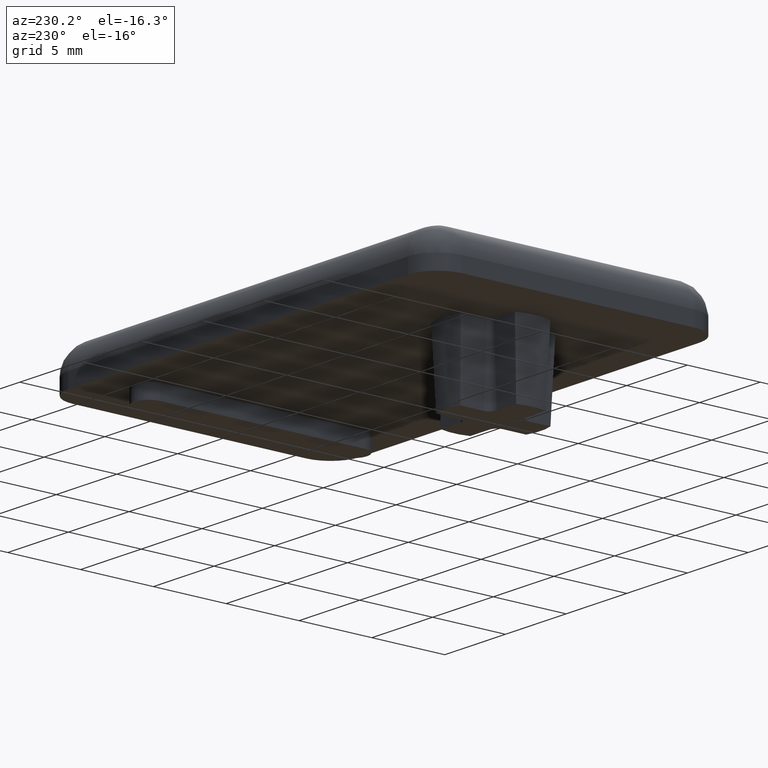
[diagram: clean part render]
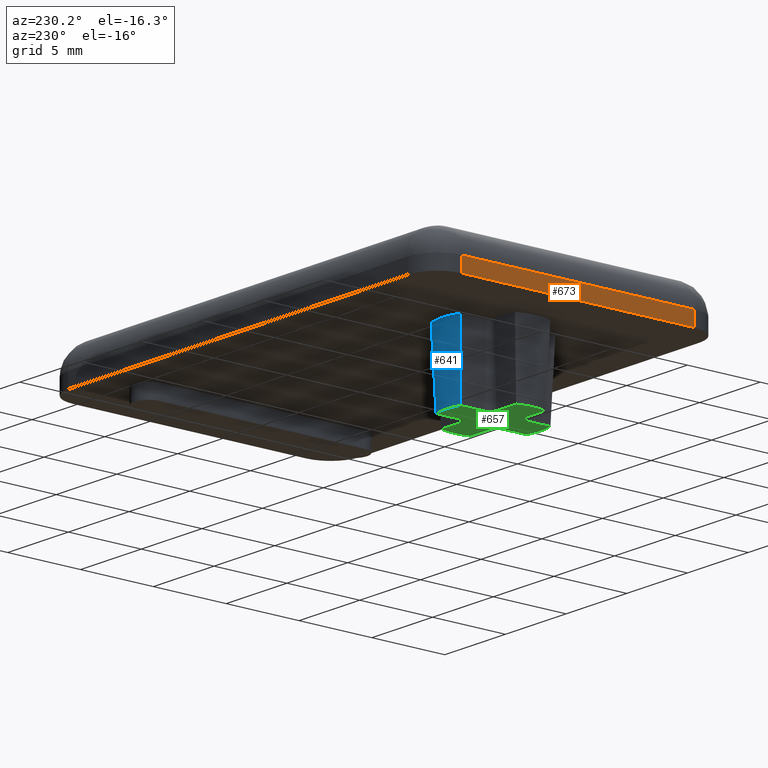
[diagram: same view with three faces highlighted in distinct colors, each labeled with its STEP entity id]
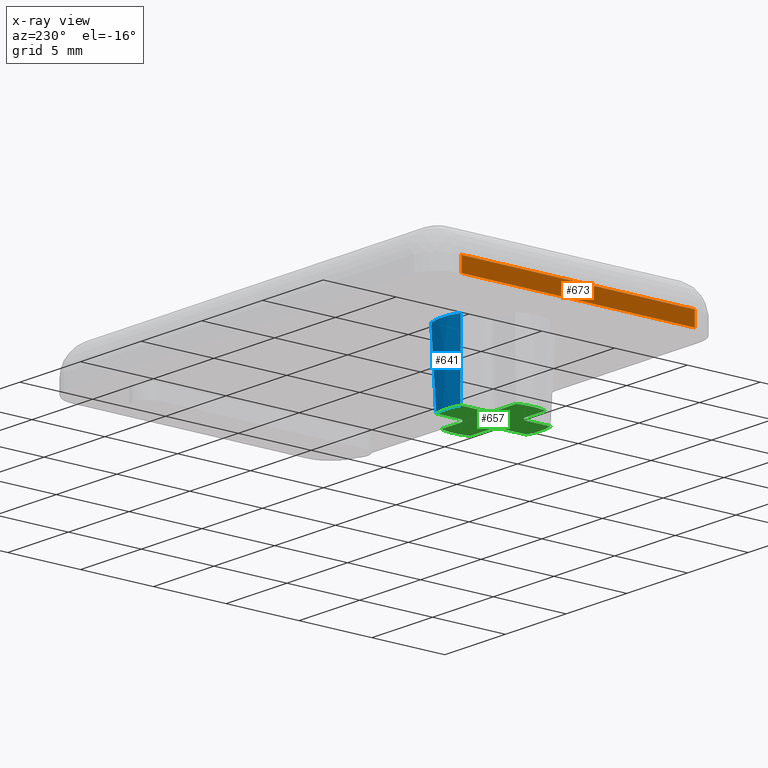
[diagram: x-ray of the same camera — body ghosted, the three highlighted faces saturated]
A machine part, auxiliary view with three faces highlighted in distinct colors.
The next image is the same camera in x-ray (body ghosted, the three faces saturated) — at least one of them is partly hidden behind the body in this view.
Their STEP definitions:

[orange] entity #673 — the highlighted planar face has unit normal (-1, 0, 0).
#53=PLANE('',#751);
#93=FACE_OUTER_BOUND('',#135,.T.);
#135=EDGE_LOOP('',(#617,#618,#619,#620));
#175=LINE('',#1129,#227);
#181=LINE('',#1156,#233);
#183=LINE('',#1160,#235);
#187=LINE('',#1168,#239);
#227=VECTOR('',#903,1.);
#233=VECTOR('',#935,1.);
#235=VECTOR('',#941,16.);
#239=VECTOR('',#953,16.);
#326=VERTEX_POINT('',#1122);
#328=VERTEX_POINT('',#1127);
#333=VERTEX_POINT('',#1146);
#335=VERTEX_POINT('',#1152);
#411=EDGE_CURVE('',#328,#326,#175,.T.);
#425=EDGE_CURVE('',#333,#335,#181,.T.);
#427=EDGE_CURVE('',#326,#333,#183,.T.);
#431=EDGE_CURVE('',#335,#328,#187,.T.);
#617=ORIENTED_EDGE('',*,*,#411,.F.);
#618=ORIENTED_EDGE('',*,*,#431,.F.);
#619=ORIENTED_EDGE('',*,*,#425,.F.);
#620=ORIENTED_EDGE('',*,*,#427,.F.);
#673=ADVANCED_FACE('',(#93),#53,.T.);
#751=AXIS2_PLACEMENT_3D('',#1170,#955,#956);
#903=DIRECTION('',(0.,0.,1.));
#935=DIRECTION('',(0.,0.,-1.));
#941=DIRECTION('',(0.,-1.,0.));
#953=DIRECTION('',(0.,1.,0.));
#955=DIRECTION('center_axis',(-1.,0.,0.));
#956=DIRECTION('ref_axis',(0.,-1.,0.));
#1122=CARTESIAN_POINT('',(-16.,8.00000000000003,1.));
#1127=CARTESIAN_POINT('',(-16.,8.00000000000003,0.));
#1129=CARTESIAN_POINT('',(-16.,8.00000000000003,0.));
#1146=CARTESIAN_POINT('',(-16.,-7.99999999999996,1.));
#1152=CARTESIAN_POINT('',(-16.,-7.99999999999996,0.));
#1156=CARTESIAN_POINT('',(-16.,-7.99999999999996,0.));
#1160=CARTESIAN_POINT('',(-16.,5.00000000000003,1.));
#1168=CARTESIAN_POINT('',(-16.,-9.99999999999996,0.));
#1170=CARTESIAN_POINT('Origin',(-16.,10.,0.));

[blue] entity #641 — the highlighted conical surface has half-angle 2.5 deg.
#21=(
BOUNDED_CURVE()
B_SPLINE_CURVE(2,(#999,#1000,#1001),.UNSPECIFIED.,.F.,.F.)
B_SPLINE_CURVE_WITH_KNOTS((3,3),(82.649049565892,83.7909310166994),
 .UNSPECIFIED.)
CURVE()
GEOMETRIC_REPRESENTATION_ITEM()
RATIONAL_B_SPLINE_CURVE((1.,1.,1.))
REPRESENTATION_ITEM('')
);
#22=(
BOUNDED_CURVE()
B_SPLINE_CURVE(2,(#1004,#1005,#1006),.UNSPECIFIED.,.F.,.F.)
B_SPLINE_CURVE_WITH_KNOTS((3,3),(82.649049565206,83.7909310159598),
 .UNSPECIFIED.)
CURVE()
GEOMETRIC_REPRESENTATION_ITEM()
RATIONAL_B_SPLINE_CURVE((1.,1.,1.))
REPRESENTATION_ITEM('')
);
#29=CONICAL_SURFACE('',#687,3.25,2.5);
#61=FACE_OUTER_BOUND('',#101,.T.);
#101=EDGE_LOOP('',(#457,#458,#459,#460));
#245=CIRCLE('',#688,3.46830471454256);
#246=CIRCLE('',#689,3.25);
#289=VERTEX_POINT('',#995);
#290=VERTEX_POINT('',#996);
#291=VERTEX_POINT('',#998);
#292=VERTEX_POINT('',#1002);
#353=EDGE_CURVE('',#289,#290,#245,.F.);
#354=EDGE_CURVE('',#291,#289,#21,.F.);
#355=EDGE_CURVE('',#291,#292,#246,.T.);
#356=EDGE_CURVE('',#292,#290,#22,.F.);
#457=ORIENTED_EDGE('',*,*,#353,.F.);
#458=ORIENTED_EDGE('',*,*,#354,.F.);
#459=ORIENTED_EDGE('',*,*,#355,.T.);
#460=ORIENTED_EDGE('',*,*,#356,.T.);
#641=ADVANCED_FACE('',(#61),#29,.T.);
#687=AXIS2_PLACEMENT_3D('',#994,#787,#788);
#688=AXIS2_PLACEMENT_3D('',#997,#789,#790);
#689=AXIS2_PLACEMENT_3D('',#1003,#791,#792);
#787=DIRECTION('center_axis',(0.,0.,1.));
#788=DIRECTION('ref_axis',(1.,0.,0.));
#789=DIRECTION('center_axis',(0.,0.,-1.));
#790=DIRECTION('ref_axis',(1.,0.,0.));
#791=DIRECTION('center_axis',(0.,0.,1.));
#792=DIRECTION('ref_axis',(1.,0.,0.));
#994=CARTESIAN_POINT('Origin',(-9.,0.,-5.));
#995=CARTESIAN_POINT('',(-7.78169528545744,3.2472867467228,0.));
#996=CARTESIAN_POINT('',(-10.2183047145426,3.2472867467228,0.));
#997=CARTESIAN_POINT('Origin',(-9.,0.,0.));
#998=CARTESIAN_POINT('',(-8.,3.09232921921325,-5.));
#999=CARTESIAN_POINT('Ctrl Pts',(-7.78169528545745,3.24728674662566,0.));
#1000=CARTESIAN_POINT('Ctrl Pts',(-7.89351562443397,3.16980798286714,-2.56110682746429));
#1001=CARTESIAN_POINT('Ctrl Pts',(-8.00000000000291,3.09232921910863,-5.0000000000664));
#1002=CARTESIAN_POINT('',(-10.,3.09232921921325,-5.));
#1003=CARTESIAN_POINT('Origin',(-9.,0.,-5.));
#1004=CARTESIAN_POINT('Ctrl Pts',(-10.2183047145426,3.24728674677263,1.06581410364015E-13));
#1005=CARTESIAN_POINT('Ctrl Pts',(-10.1064843755663,3.16980798301812,-2.56110682746014));
#1006=CARTESIAN_POINT('Ctrl Pts',(-9.99999999999698,3.0923292192636,-5.00000000007017));

[green] entity #657 — the highlighted planar face has unit normal (0, 0, 1).
#49=PLANE('',#719);
#77=FACE_OUTER_BOUND('',#117,.T.);
#117=EDGE_LOOP('',(#521,#522,#523,#524,#525,#526,#527,#528,#529,#530,#531,
#532,#533,#534,#535,#536));
#151=LINE('',#1012,#203);
#154=LINE('',#1026,#206);
#157=LINE('',#1040,#209);
#160=LINE('',#1054,#212);
#163=LINE('',#1068,#215);
#166=LINE('',#1082,#218);
#169=LINE('',#1096,#221);
#172=LINE('',#1105,#224);
#203=VECTOR('',#797,1.59232921921325);
#206=VECTOR('',#808,1.59232921921325);
#209=VECTOR('',#819,1.59232921921325);
#212=VECTOR('',#830,1.59232921921325);
#215=VECTOR('',#841,1.59232921921325);
#218=VECTOR('',#852,1.59232921921324);
#221=VECTOR('',#863,1.59232921921324);
#224=VECTOR('',#874,1.59232921921325);
#246=CIRCLE('',#689,3.25);
#248=CIRCLE('',#693,0.5);
#250=CIRCLE('',#697,3.25);
#252=CIRCLE('',#701,0.5);
#254=CIRCLE('',#705,3.25);
#256=CIRCLE('',#709,0.5);
#258=CIRCLE('',#713,3.25);
#260=CIRCLE('',#717,0.5);
#291=VERTEX_POINT('',#998);
#292=VERTEX_POINT('',#1002);
#294=VERTEX_POINT('',#1010);
#296=VERTEX_POINT('',#1016);
#298=VERTEX_POINT('',#1022);
#300=VERTEX_POINT('',#1030);
#302=VERTEX_POINT('',#1038);
#304=VERTEX_POINT('',#1044);
#306=VERTEX_POINT('',#1050);
#308=VERTEX_POINT('',#1058);
#310=VERTEX_POINT('',#1066);
#312=VERTEX_POINT('',#1072);
#314=VERTEX_POINT('',#1078);
#316=VERTEX_POINT('',#1086);
#318=VERTEX_POINT('',#1094);
#320=VERTEX_POINT('',#1100);
#355=EDGE_CURVE('',#291,#292,#246,.T.);
#359=EDGE_CURVE('',#294,#291,#151,.T.);
#362=EDGE_CURVE('',#296,#294,#248,.T.);
#365=EDGE_CURVE('',#298,#296,#154,.T.);
#368=EDGE_CURVE('',#300,#298,#250,.T.);
#371=EDGE_CURVE('',#302,#300,#157,.T.);
#374=EDGE_CURVE('',#304,#302,#252,.T.);
#377=EDGE_CURVE('',#306,#304,#160,.T.);
#380=EDGE_CURVE('',#308,#306,#254,.T.);
#383=EDGE_CURVE('',#310,#308,#163,.T.);
#386=EDGE_CURVE('',#312,#310,#256,.T.);
#389=EDGE_CURVE('',#314,#312,#166,.T.);
#392=EDGE_CURVE('',#316,#314,#258,.T.);
#395=EDGE_CURVE('',#318,#316,#169,.T.);
#398=EDGE_CURVE('',#320,#318,#260,.T.);
#400=EDGE_CURVE('',#292,#320,#172,.T.);
#521=ORIENTED_EDGE('',*,*,#374,.F.);
#522=ORIENTED_EDGE('',*,*,#377,.F.);
#523=ORIENTED_EDGE('',*,*,#380,.F.);
#524=ORIENTED_EDGE('',*,*,#383,.F.);
#525=ORIENTED_EDGE('',*,*,#386,.F.);
#526=ORIENTED_EDGE('',*,*,#389,.F.);
#527=ORIENTED_EDGE('',*,*,#392,.F.);
#528=ORIENTED_EDGE('',*,*,#395,.F.);
#529=ORIENTED_EDGE('',*,*,#398,.F.);
#530=ORIENTED_EDGE('',*,*,#400,.F.);
#531=ORIENTED_EDGE('',*,*,#355,.F.);
#532=ORIENTED_EDGE('',*,*,#359,.F.);
#533=ORIENTED_EDGE('',*,*,#362,.F.);
#534=ORIENTED_EDGE('',*,*,#365,.F.);
#535=ORIENTED_EDGE('',*,*,#368,.F.);
#536=ORIENTED_EDGE('',*,*,#371,.F.);
#657=ADVANCED_FACE('',(#77),#49,.F.);
#689=AXIS2_PLACEMENT_3D('',#1003,#791,#792);
#693=AXIS2_PLACEMENT_3D('',#1018,#803,#804);
#697=AXIS2_PLACEMENT_3D('',#1034,#813,#814);
#701=AXIS2_PLACEMENT_3D('',#1046,#825,#826);
#705=AXIS2_PLACEMENT_3D('',#1062,#835,#836);
#709=AXIS2_PLACEMENT_3D('',#1074,#847,#848);
#713=AXIS2_PLACEMENT_3D('',#1090,#857,#858);
#717=AXIS2_PLACEMENT_3D('',#1102,#869,#870);
#719=AXIS2_PLACEMENT_3D('',#1106,#875,#876);
#791=DIRECTION('center_axis',(0.,0.,1.));
#792=DIRECTION('ref_axis',(1.,0.,0.));
#797=DIRECTION('',(0.,1.,0.));
#803=DIRECTION('center_axis',(0.,0.,-1.));
#804=DIRECTION('ref_axis',(1.,0.,0.));
#808=DIRECTION('',(-1.,0.,0.));
#813=DIRECTION('center_axis',(0.,0.,1.));
#814=DIRECTION('ref_axis',(1.,0.,0.));
#819=DIRECTION('',(1.,0.,0.));
#825=DIRECTION('center_axis',(0.,0.,-1.));
#826=DIRECTION('ref_axis',(0.,-1.,0.));
#830=DIRECTION('',(0.,1.,0.));
#835=DIRECTION('center_axis',(0.,0.,1.));
#836=DIRECTION('ref_axis',(1.,0.,0.));
#841=DIRECTION('',(0.,-1.,0.));
#847=DIRECTION('center_axis',(0.,0.,-1.));
#848=DIRECTION('ref_axis',(-1.,0.,0.));
#852=DIRECTION('',(1.,0.,0.));
#857=DIRECTION('center_axis',(0.,0.,1.));
#858=DIRECTION('ref_axis',(1.,0.,0.));
#863=DIRECTION('',(-1.,0.,0.));
#869=DIRECTION('center_axis',(0.,0.,-1.));
#870=DIRECTION('ref_axis',(0.,1.,0.));
#874=DIRECTION('',(0.,-1.,0.));
#875=DIRECTION('center_axis',(0.,0.,1.));
#876=DIRECTION('ref_axis',(1.,0.,0.));
#998=CARTESIAN_POINT('',(-8.,3.09232921921325,-5.));
#1002=CARTESIAN_POINT('',(-10.,3.09232921921325,-5.));
#1003=CARTESIAN_POINT('Origin',(-9.,0.,-5.));
#1010=CARTESIAN_POINT('',(-8.,1.5,-5.));
#1012=CARTESIAN_POINT('',(-8.,1.5,-5.));
#1016=CARTESIAN_POINT('',(-7.5,1.,-5.));
#1018=CARTESIAN_POINT('Origin',(-7.5,1.5,-5.));
#1022=CARTESIAN_POINT('',(-5.90767078078675,1.,-5.));
#1026=CARTESIAN_POINT('',(-5.90767078078675,1.,-5.));
#1030=CARTESIAN_POINT('',(-5.90767078078675,-1.,-5.));
#1034=CARTESIAN_POINT('Origin',(-9.,0.,-5.));
#1038=CARTESIAN_POINT('',(-7.5,-1.,-5.));
#1040=CARTESIAN_POINT('',(-7.5,-1.,-5.));
#1044=CARTESIAN_POINT('',(-8.,-1.5,-5.));
#1046=CARTESIAN_POINT('Origin',(-7.5,-1.5,-5.));
#1050=CARTESIAN_POINT('',(-8.,-3.09232921921325,-5.));
#1054=CARTESIAN_POINT('',(-8.,-3.09232921921325,-5.));
#1058=CARTESIAN_POINT('',(-10.,-3.09232921921325,-5.));
#1062=CARTESIAN_POINT('Origin',(-9.,0.,-5.));
#1066=CARTESIAN_POINT('',(-10.,-1.5,-5.));
#1068=CARTESIAN_POINT('',(-10.,-1.5,-5.));
#1072=CARTESIAN_POINT('',(-10.5,-1.,-5.));
#1074=CARTESIAN_POINT('Origin',(-10.5,-1.5,-5.));
#1078=CARTESIAN_POINT('',(-12.0923292192132,-1.,-5.));
#1082=CARTESIAN_POINT('',(-12.0923292192132,-1.,-5.));
#1086=CARTESIAN_POINT('',(-12.0923292192132,1.,-5.));
#1090=CARTESIAN_POINT('Origin',(-9.,0.,-5.));
#1094=CARTESIAN_POINT('',(-10.5,1.,-5.));
#1096=CARTESIAN_POINT('',(-10.5,1.,-5.));
#1100=CARTESIAN_POINT('',(-10.,1.5,-5.));
#1102=CARTESIAN_POINT('Origin',(-10.5,1.5,-5.));
#1105=CARTESIAN_POINT('',(-10.,3.09232921921325,-5.));
#1106=CARTESIAN_POINT('Origin',(-9.,-1.96441431192505E-16,-5.));